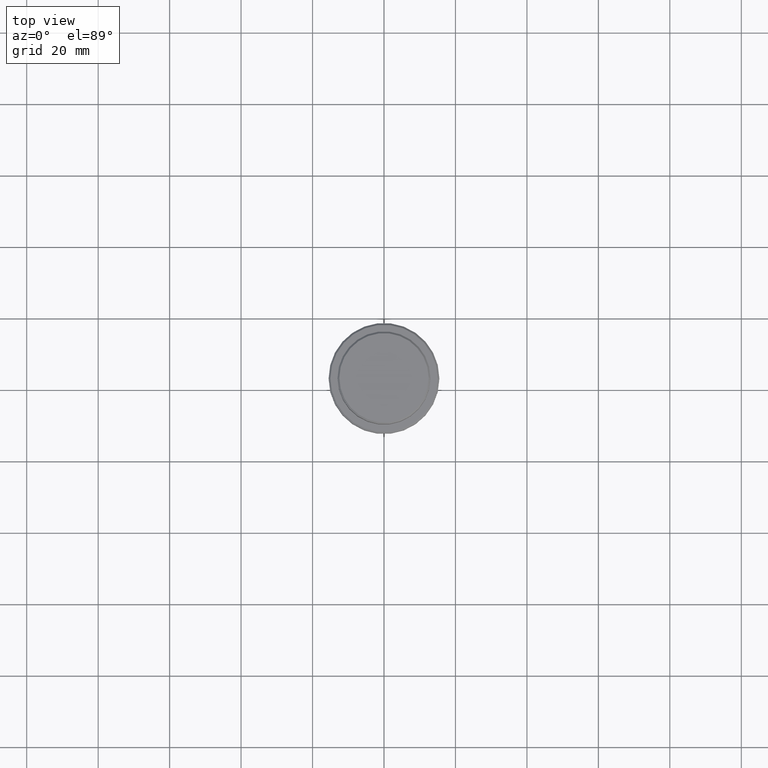
[diagram: clean part render]
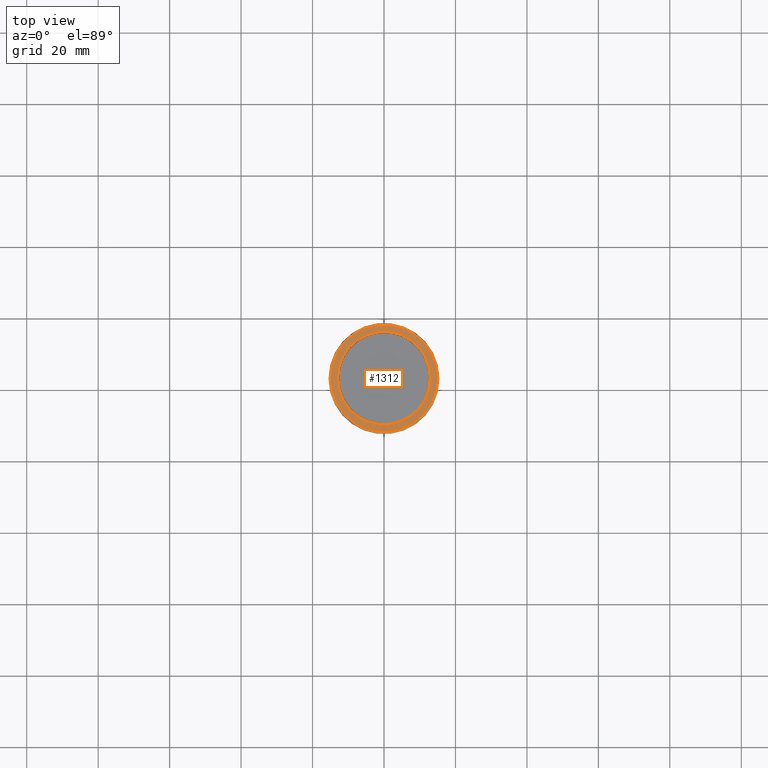
[diagram: same view with one face highlighted and labeled with its STEP entity id]
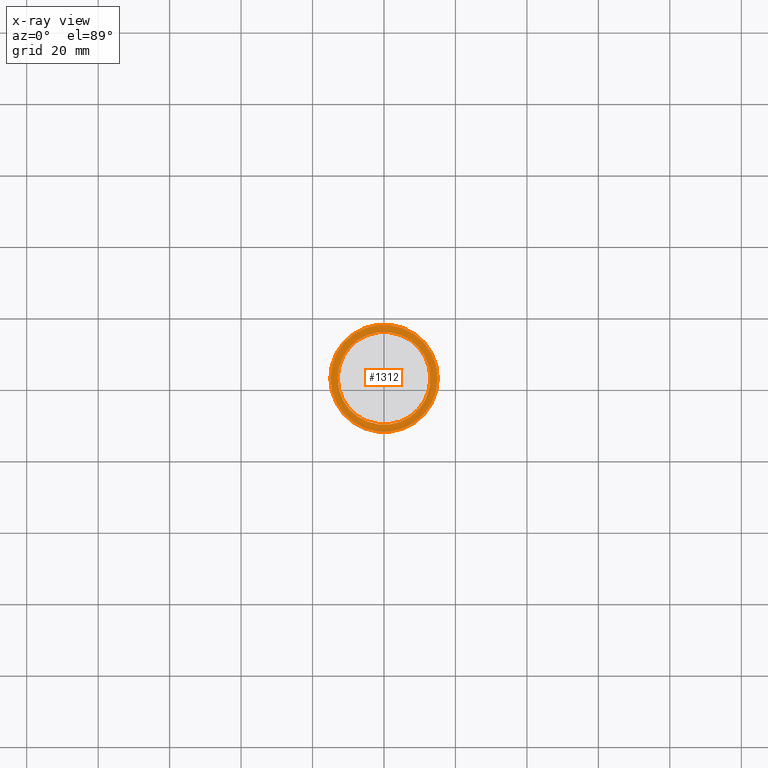
[diagram: x-ray of the same camera — body ghosted, the highlighted face saturated]
A machine part, top view. The second image highlights one B-rep face of the part: STEP entity #1312.
The next image is the same camera in x-ray: the body ghosted, the highlighted face saturated — about 0% of this face is hidden behind the body in this view.
In plain terms, the highlighted planar face has unit normal (0, -0, 1).
Its self-contained STEP definition (entity closure, byte-faithful):
#27 = FACE_BOUND ( 'NONE', #392, .T. ) ;
#48 = DIRECTION ( 'NONE',  ( 0.000000000000000000, 0.000000000000000000, -1.000000000000000000 ) ) ;
#55 = DIRECTION ( 'NONE',  ( 0.000000000000000000, -0.000000000000000000, 1.000000000000000000 ) ) ;
#60 = CIRCLE ( 'NONE', #1255, 12.99999999999999467 ) ;
#75 = EDGE_CURVE ( 'NONE', #275, #1349, #330, .T. ) ;
#92 = VERTEX_POINT ( 'NONE', #1170 ) ;
#94 = EDGE_CURVE ( 'NONE', #168, #92, #1136, .T. ) ;
#109 = AXIS2_PLACEMENT_3D ( 'NONE', #301, #306, #504 ) ;
#110 = AXIS2_PLACEMENT_3D ( 'NONE', #1042, #55, #931 ) ;
#126 = AXIS2_PLACEMENT_3D ( 'NONE', #518, #385, #506 ) ;
#165 = DIRECTION ( 'NONE',  ( 1.000000000000000000, 0.000000000000000000, 0.000000000000000000 ) ) ;
#166 = DIRECTION ( 'NONE',  ( 1.000000000000000000, 0.000000000000000000, 0.000000000000000000 ) ) ;
#168 = VERTEX_POINT ( 'NONE', #304 ) ;
#183 = CARTESIAN_POINT ( 'NONE',  ( 0.000000000000000000, 0.000000000000000000, -9.000000000000000000 ) ) ;
#265 = AXIS2_PLACEMENT_3D ( 'NONE', #183, #621, #166 ) ;
#275 = VERTEX_POINT ( 'NONE', #792 ) ;
#301 = CARTESIAN_POINT ( 'NONE',  ( 0.000000000000000000, 0.000000000000000000, -9.000000000000000000 ) ) ;
#304 = CARTESIAN_POINT ( 'NONE',  ( 15.00000000000001421, 1.867586368699714559E-15, -9.000000000000000000 ) ) ;
#306 = DIRECTION ( 'NONE',  ( -0.000000000000000000, -0.000000000000000000, 1.000000000000000000 ) ) ;
#330 = CIRCLE ( 'NONE', #126, 12.99999999999999467 ) ;
#385 = DIRECTION ( 'NONE',  ( 0.000000000000000000, 0.000000000000000000, -1.000000000000000000 ) ) ;
#392 = EDGE_LOOP ( 'NONE', ( #1216, #653 ) ) ;
#395 = EDGE_CURVE ( 'NONE', #1349, #275, #60, .T. ) ;
#504 = DIRECTION ( 'NONE',  ( 1.000000000000000000, 0.000000000000000000, 0.000000000000000000 ) ) ;
#506 = DIRECTION ( 'NONE',  ( 1.000000000000000000, 0.000000000000000000, 0.000000000000000000 ) ) ;
#518 = CARTESIAN_POINT ( 'NONE',  ( 0.000000000000000000, 0.000000000000000000, -9.000000000000000000 ) ) ;
#600 = PLANE ( 'NONE',  #110 ) ;
#617 = EDGE_LOOP ( 'NONE', ( #940, #1325 ) ) ;
#621 = DIRECTION ( 'NONE',  ( -0.000000000000000000, -0.000000000000000000, 1.000000000000000000 ) ) ;
#653 = ORIENTED_EDGE ( 'NONE', *, *, #395, .T. ) ;
#792 = CARTESIAN_POINT ( 'NONE',  ( 12.99999999999999467, 0.000000000000000000, -9.000000000000000000 ) ) ;
#931 = DIRECTION ( 'NONE',  ( 1.000000000000000000, 0.000000000000000000, 0.000000000000000000 ) ) ;
#940 = ORIENTED_EDGE ( 'NONE', *, *, #953, .T. ) ;
#953 = EDGE_CURVE ( 'NONE', #92, #168, #1231, .T. ) ;
#1042 = CARTESIAN_POINT ( 'NONE',  ( 0.000000000000000000, 12.49999999999999289, -9.000000000000000000 ) ) ;
#1136 = CIRCLE ( 'NONE', #265, 15.00000000000001421 ) ;
#1155 = CARTESIAN_POINT ( 'NONE',  ( 0.000000000000000000, 0.000000000000000000, -9.000000000000000000 ) ) ;
#1170 = CARTESIAN_POINT ( 'NONE',  ( -15.00000000000001421, 0.000000000000000000, -9.000000000000000000 ) ) ;
#1216 = ORIENTED_EDGE ( 'NONE', *, *, #75, .T. ) ;
#1231 = CIRCLE ( 'NONE', #109, 15.00000000000001421 ) ;
#1233 = CARTESIAN_POINT ( 'NONE',  ( -12.99999999999999467, 1.592040838891558504E-15, -9.000000000000000000 ) ) ;
#1247 = FACE_OUTER_BOUND ( 'NONE', #617, .T. ) ;
#1255 = AXIS2_PLACEMENT_3D ( 'NONE', #1155, #48, #165 ) ;
#1312 = ADVANCED_FACE ( 'NONE', ( #1247, #27 ), #600, .T. ) ;
#1325 = ORIENTED_EDGE ( 'NONE', *, *, #94, .T. ) ;
#1349 = VERTEX_POINT ( 'NONE', #1233 ) ;